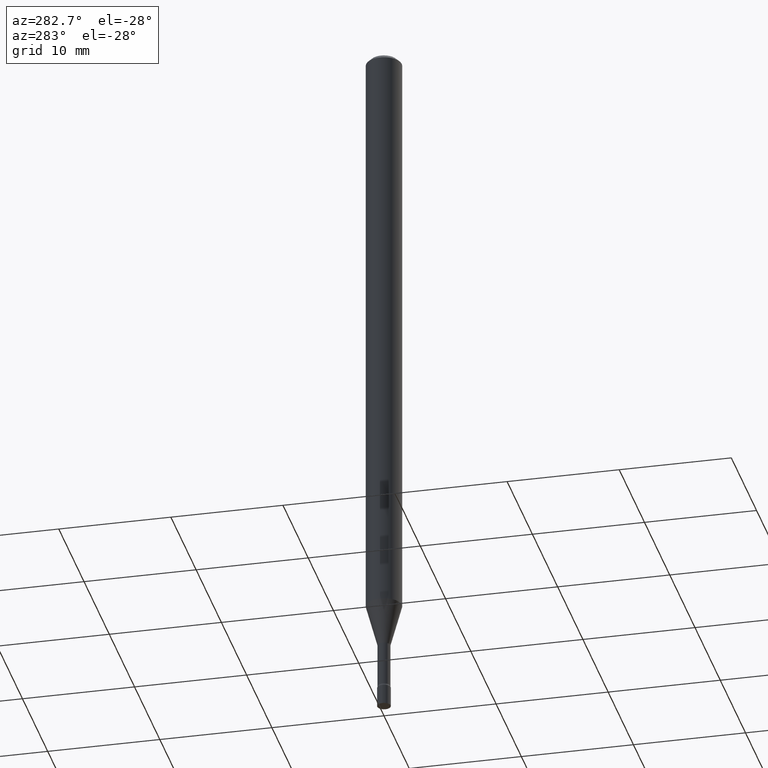
[diagram: clean part render]
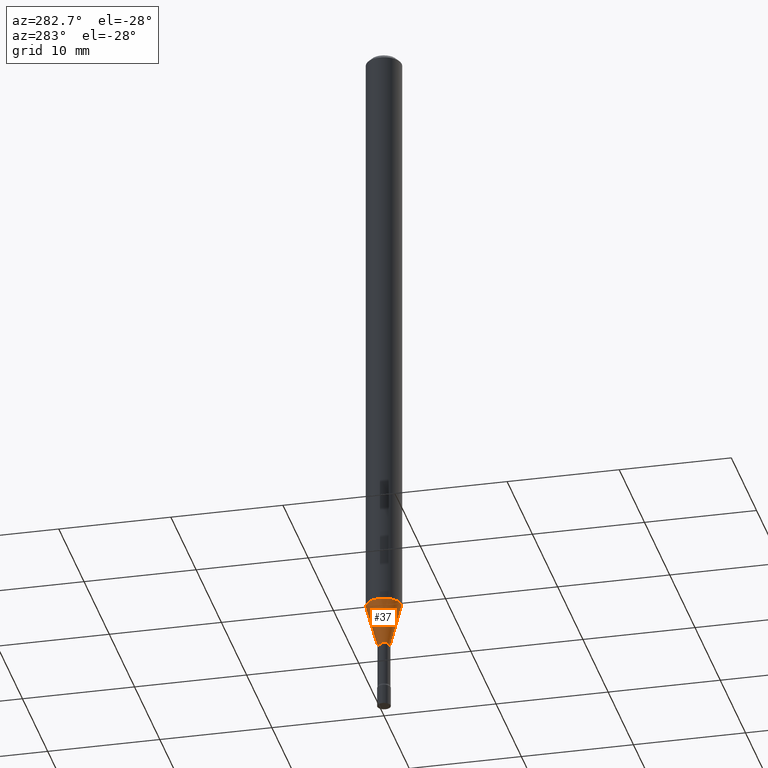
[diagram: same view with one face highlighted and labeled with its STEP entity id]
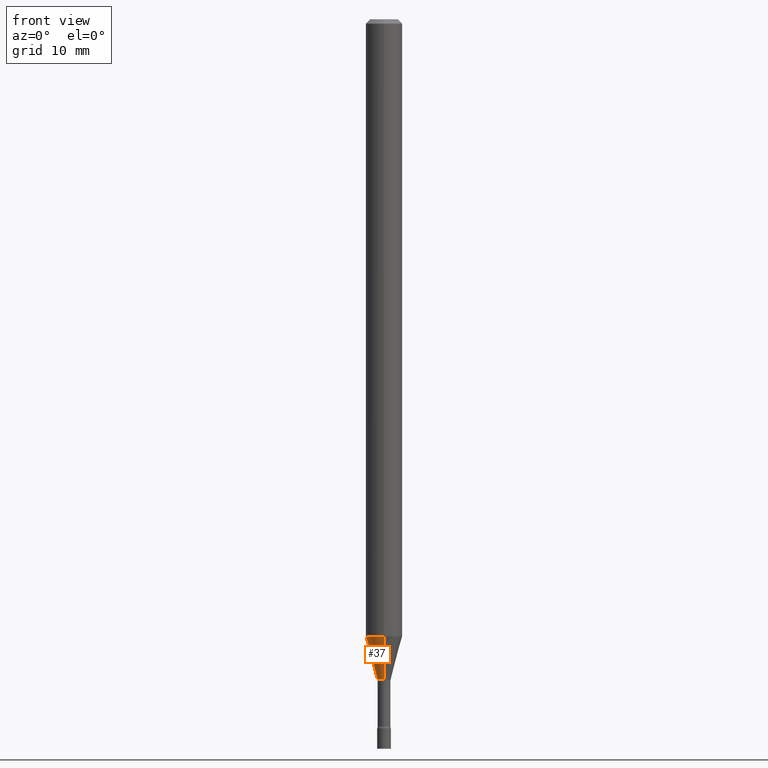
[diagram: same view with one face highlighted and labeled with its STEP entity id]
A machine part, auxiliary view. The second image highlights one B-rep face of the part: STEP entity #37.
A second angle (front view) of the same face is appended — the face is thin or edge-on in the first view.
In plain terms, the highlighted conical surface has half-angle 15 deg.
Its self-contained STEP definition (entity closure, byte-faithful):
#4 = CARTESIAN_POINT ( 'NONE',  ( 4.440892098501140893E-16, 0.06249999999999258926, -2.114225147374217961 ) ) ;
#37 = ADVANCED_FACE ( 'NONE', ( #254 ), #242, .T. ) ;
#40 = DIRECTION ( 'NONE',  ( -6.982962677686265922E-15, -1.000000000000000000, 0.000000000000000000 ) ) ;
#75 = ORIENTED_EDGE ( 'NONE', *, *, #98, .F. ) ;
#80 = DIRECTION ( 'NONE',  ( -2.445456510120580117E-29, 3.491498947507439183E-15, 1.000000000000000000 ) ) ;
#98 = EDGE_CURVE ( 'NONE', #208, #400, #103, .T. ) ;
#100 = VECTOR ( 'NONE', #144, 39.37007874015749564 ) ;
#103 = LINE ( 'NONE', #140, #433 ) ;
#129 = CIRCLE ( 'NONE', #161, 0.06250000000000000000 ) ;
#137 = DIRECTION ( 'NONE',  ( -6.982962677686265922E-15, -1.000000000000000000, 4.370956789862821150E-15 ) ) ;
#140 = CARTESIAN_POINT ( 'NONE',  ( 1.606616180941370852E-16, 0.02261111260565608697, -2.263092501787272948 ) ) ;
#144 = DIRECTION ( 'NONE',  ( -1.807323732225328562E-15, -0.2588190451025179639, 0.9659258262890689783 ) ) ;
#161 = AXIS2_PLACEMENT_3D ( 'NONE', #374, #501, #137 ) ;
#185 = CARTESIAN_POINT ( 'NONE',  ( 5.534294291500757291E-29, -7.901585088102242025E-15, -2.263092501787272948 ) ) ;
#193 = VERTEX_POINT ( 'NONE', #499 ) ;
#198 = DIRECTION ( 'NONE',  ( -2.445456510120580117E-29, 3.491498947507439183E-15, 1.000000000000000000 ) ) ;
#205 = CIRCLE ( 'NONE', #226, 0.02261111260566398690 ) ;
#208 = VERTEX_POINT ( 'NONE', #292 ) ;
#218 = EDGE_CURVE ( 'NONE', #400, #319, #129, .T. ) ;
#226 = AXIS2_PLACEMENT_3D ( 'NONE', #294, #198, #314 ) ;
#228 = ORIENTED_EDGE ( 'NONE', *, *, #391, .T. ) ;
#242 = CONICAL_SURFACE ( 'NONE', #329, 0.02261111260566398690, 0.2617993877991501295 ) ;
#245 = EDGE_CURVE ( 'NONE', #208, #193, #205, .T. ) ;
#254 = FACE_OUTER_BOUND ( 'NONE', #485, .T. ) ;
#278 = CARTESIAN_POINT ( 'NONE',  ( -1.578925554262577325E-16, -0.02261111260567189030, -2.263092501787272948 ) ) ;
#292 = CARTESIAN_POINT ( 'NONE',  ( 3.023754139721258091E-16, 0.02261111260565609044, -2.263092501787272948 ) ) ;
#294 = CARTESIAN_POINT ( 'NONE',  ( 5.534294291500757291E-29, -7.901585088102242025E-15, -2.263092501787272948 ) ) ;
#314 = DIRECTION ( 'NONE',  ( -6.982962677686265922E-15, -1.000000000000000000, 0.000000000000000000 ) ) ;
#319 = VERTEX_POINT ( 'NONE', #511 ) ;
#329 = AXIS2_PLACEMENT_3D ( 'NONE', #185, #80, #40 ) ;
#350 = ORIENTED_EDGE ( 'NONE', *, *, #245, .T. ) ;
#374 = CARTESIAN_POINT ( 'NONE',  ( 5.170245650506924061E-29, -7.381814876850842660E-15, -2.114225147374217961 ) ) ;
#391 = EDGE_CURVE ( 'NONE', #193, #319, #506, .T. ) ;
#400 = VERTEX_POINT ( 'NONE', #4 ) ;
#414 = DIRECTION ( 'NONE',  ( 1.839019923739599526E-15, 0.2588190451025248473, 0.9659258262890673130 ) ) ;
#433 = VECTOR ( 'NONE', #414, 39.37007874015747433 ) ;
#485 = EDGE_LOOP ( 'NONE', ( #75, #350, #228, #520 ) ) ;
#499 = CARTESIAN_POINT ( 'NONE',  ( -1.578925554262577325E-16, -0.02261111260567189030, -2.263092501787272948 ) ) ;
#501 = DIRECTION ( 'NONE',  ( -2.445456510120580117E-29, 3.491498947507439183E-15, 1.000000000000000000 ) ) ;
#506 = LINE ( 'NONE', #278, #100 ) ;
#511 = CARTESIAN_POINT ( 'NONE',  ( -4.364351673553400976E-16, -0.06250000000000741074, -2.114225147374217517 ) ) ;
#520 = ORIENTED_EDGE ( 'NONE', *, *, #218, .F. ) ;